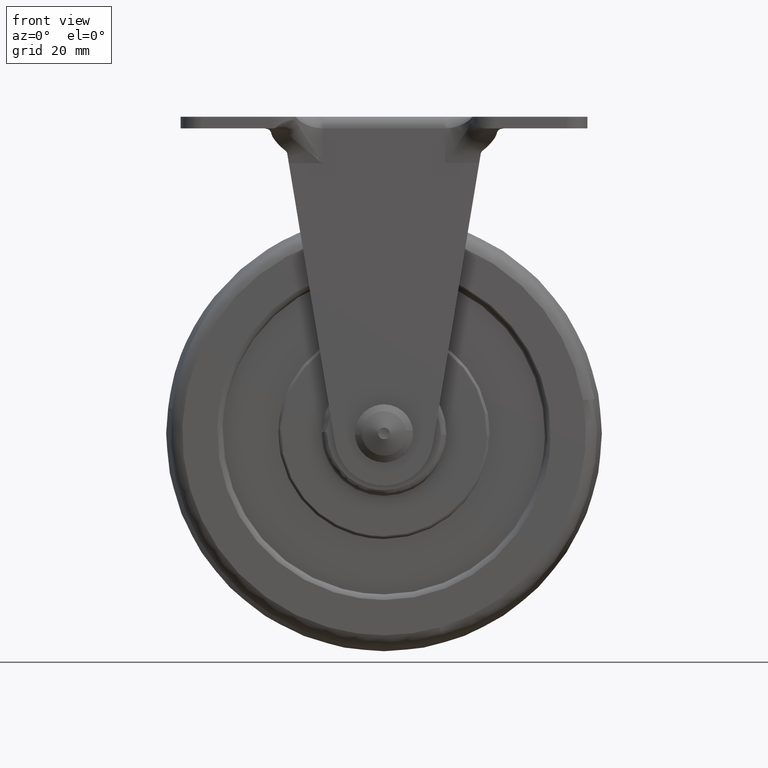
[diagram: clean part render]
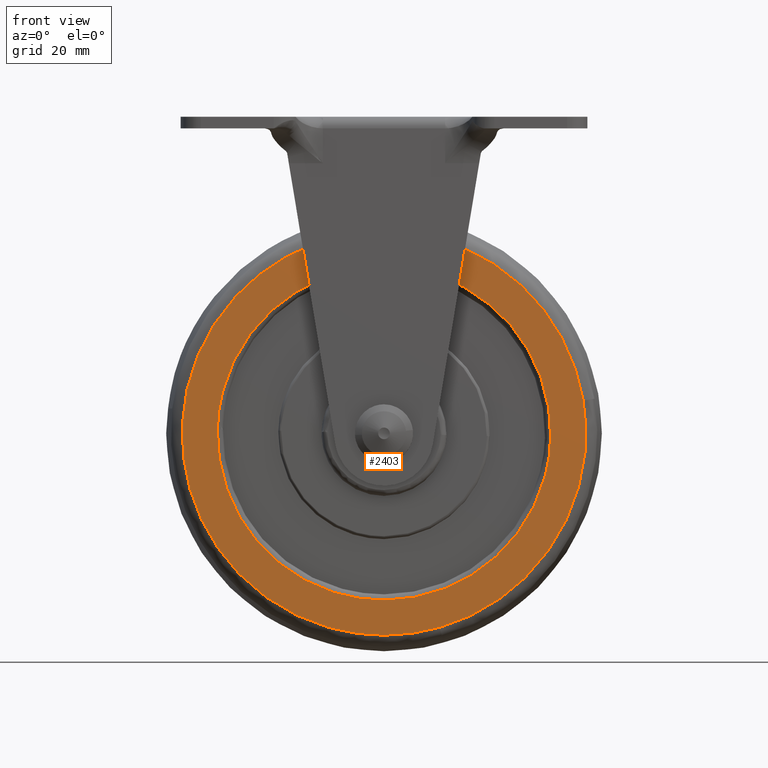
[diagram: same view with one face highlighted and labeled with its STEP entity id]
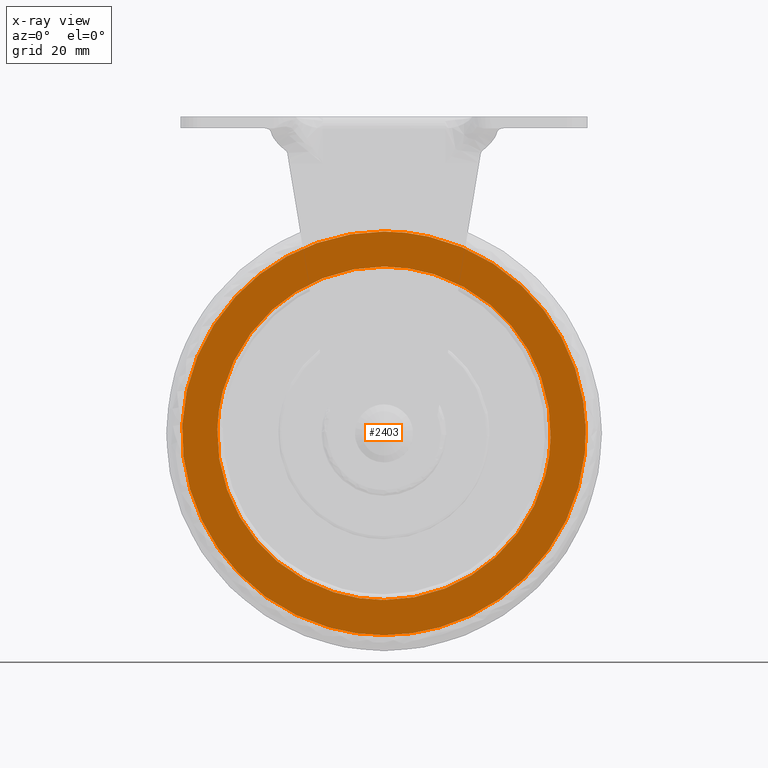
[diagram: x-ray of the same camera — body ghosted, the highlighted face saturated]
A machine part, front view. The second image highlights one B-rep face of the part: STEP entity #2403.
The next image is the same camera in x-ray: the body ghosted, the highlighted face saturated — about 0% of this face is hidden behind the body in this view.
In plain terms, the highlighted face is a freeform B-spline surface patch.
Its self-contained STEP definition (entity closure, byte-faithful):
#679=CARTESIAN_POINT('',(28.690937227376921,-10.499999999999940,-0.721233764432394));
#680=VERTEX_POINT('',#679);
#681=CARTESIAN_POINT('',(0.0,-10.500000000000000,28.700001000000000));
#682=VERTEX_POINT('',#681);
#683=CARTESIAN_POINT('',(28.690937227376914,-10.499999999999940,-0.721233764432394));
#684=CARTESIAN_POINT('',(28.700000999999997,-10.499999999999998,-0.360673834705606));
#685=CARTESIAN_POINT('',(28.700001000000000,-10.500000000000000,1.211545E-015));
#686=CARTESIAN_POINT('',(28.700000999999997,-10.500000000000000,28.700000999999997));
#687=CARTESIAN_POINT('',(0.0,-10.500000000000000,28.700001000000000));
#695=(BOUNDED_CURVE()B_SPLINE_CURVE(2,(#683,#684,#685,#686,#687),.UNSPECIFIED.,.F.,.U.)B_SPLINE_CURVE_WITH_KNOTS((3,2,3),(0.245579891767399,0.250000000000000,0.500000000000000),.UNSPECIFIED.)CURVE()GEOMETRIC_REPRESENTATION_ITEM()RATIONAL_B_SPLINE_CURVE((0.989826157676131,0.994821521088998,1.0,0.707106781186547,1.0))REPRESENTATION_ITEM(''));
#696=EDGE_CURVE('',#680,#682,#695,.T.);
#698=CARTESIAN_POINT('',(-28.690937227376910,-10.499999999999950,0.721233764432392));
#699=VERTEX_POINT('',#698);
#700=CARTESIAN_POINT('',(0.0,-10.500000000000000,28.700001000000000));
#701=CARTESIAN_POINT('',(-27.987606021176973,-10.500000000000000,28.700001000000004));
#702=CARTESIAN_POINT('',(-28.690937227376910,-10.499999999999947,0.721233764432392));
#710=(BOUNDED_CURVE()B_SPLINE_CURVE(2,(#700,#701,#702),.UNSPECIFIED.,.F.,.U.)B_SPLINE_CURVE_WITH_KNOTS((3,3),(0.500000000000000,0.745579891767398),.UNSPECIFIED.)CURVE()GEOMETRIC_REPRESENTATION_ITEM()RATIONAL_B_SPLINE_CURVE((1.0,0.712285260097550,0.989826157676130))REPRESENTATION_ITEM(''));
#711=EDGE_CURVE('',#682,#699,#710,.T.);
#799=CARTESIAN_POINT('',(0.0,-10.500000000000000,-28.700001000000000));
#800=VERTEX_POINT('',#799);
#801=CARTESIAN_POINT('',(0.0,-10.500000000000000,-28.700001000000000));
#802=CARTESIAN_POINT('',(27.987606021177072,-10.500000000000000,-28.700000999999990));
#803=CARTESIAN_POINT('',(28.690937227376921,-10.499999999999941,-0.721233764432394));
#811=(BOUNDED_CURVE()B_SPLINE_CURVE(2,(#801,#802,#803),.UNSPECIFIED.,.F.,.U.)B_SPLINE_CURVE_WITH_KNOTS((3,3),(0.0,0.245579891767399),.UNSPECIFIED.)CURVE()GEOMETRIC_REPRESENTATION_ITEM()RATIONAL_B_SPLINE_CURVE((1.0,0.712285260097549,0.989826157676131))REPRESENTATION_ITEM(''));
#812=EDGE_CURVE('',#800,#680,#811,.T.);
#846=CARTESIAN_POINT('',(-28.690937227376914,-10.499999999999948,0.721233764432392));
#847=CARTESIAN_POINT('',(-28.700000999999997,-10.499999999999998,0.360673834705608));
#848=CARTESIAN_POINT('',(-28.700001000000000,-10.500000000000000,1.211545E-015));
#849=CARTESIAN_POINT('',(-28.700000999999997,-10.500000000000000,-28.700000999999997));
#850=CARTESIAN_POINT('',(0.0,-10.500000000000000,-28.700001000000000));
#858=(BOUNDED_CURVE()B_SPLINE_CURVE(2,(#846,#847,#848,#849,#850),.UNSPECIFIED.,.F.,.U.)B_SPLINE_CURVE_WITH_KNOTS((3,2,3),(0.745579891767399,0.750000000000000,1.0),.UNSPECIFIED.)CURVE()GEOMETRIC_REPRESENTATION_ITEM()RATIONAL_B_SPLINE_CURVE((0.989826157676131,0.994821521088998,1.0,0.707106781186547,1.0))REPRESENTATION_ITEM(''));
#859=EDGE_CURVE('',#699,#800,#858,.T.);
#2050=CARTESIAN_POINT('',(9.570434723484794,-10.499999999999940,-33.397186575043577));
#2051=VERTEX_POINT('',#2050);
#2052=CARTESIAN_POINT('',(34.278856995392559,-10.499999999999940,5.650243789180355));
#2053=VERTEX_POINT('',#2052);
#2054=CARTESIAN_POINT('',(9.570434723484796,-10.499999999999940,-33.397186575043584));
#2055=CARTESIAN_POINT('',(34.741406003723291,-10.500000000000000,-26.184089824075990));
#2056=CARTESIAN_POINT('',(34.741406003723299,-10.500000000000000,1.211545E-015));
#2057=CARTESIAN_POINT('',(34.741406003723306,-10.499999999999996,2.844054846396036));
#2058=CARTESIAN_POINT('',(34.278856995392559,-10.499999999999940,5.650243789180355));
#2066=(BOUNDED_CURVE()B_SPLINE_CURVE(2,(#2054,#2055,#2056,#2057,#2058),.UNSPECIFIED.,.F.,.U.)B_SPLINE_CURVE_WITH_KNOTS((3,2,3),(0.046928272030947,0.250000000000000,0.277993891203201),.UNSPECIFIED.)CURVE()GEOMETRIC_REPRESENTATION_ITEM()RATIONAL_B_SPLINE_CURVE((0.910681108908233,0.762086671780537,1.0,0.967203116393524,0.941751131918918))REPRESENTATION_ITEM(''));
#2067=EDGE_CURVE('',#2051,#2053,#2066,.T.);
#2152=CARTESIAN_POINT('',(0.0,-10.500000000000000,-34.741406003723299));
#2153=VERTEX_POINT('',#2152);
#2154=CARTESIAN_POINT('',(0.0,-10.500000000000000,-34.741406003723299));
#2155=CARTESIAN_POINT('',(4.879618814094374,-10.499999999999998,-34.741406003723291));
#2156=CARTESIAN_POINT('',(9.570434723484796,-10.499999999999940,-33.397186575043584));
#2164=(BOUNDED_CURVE()B_SPLINE_CURVE(2,(#2154,#2155,#2156),.UNSPECIFIED.,.F.,.U.)B_SPLINE_CURVE_WITH_KNOTS((3,3),(0.0,0.046928272030947),.UNSPECIFIED.)CURVE()GEOMETRIC_REPRESENTATION_ITEM()RATIONAL_B_SPLINE_CURVE((1.0,0.945020109406011,0.910681108908233))REPRESENTATION_ITEM(''));
#2165=EDGE_CURVE('',#2153,#2051,#2164,.T.);
#2167=CARTESIAN_POINT('',(0.0,-10.500000000000000,34.741406003723299));
#2168=VERTEX_POINT('',#2167);
#2169=CARTESIAN_POINT('',(0.0,-10.500000000000000,34.741406003723299));
#2170=CARTESIAN_POINT('',(-34.741406003723299,-10.500000000000002,34.741406003723299));
#2171=CARTESIAN_POINT('',(-34.741406003723299,-10.500000000000000,1.211545E-015));
#2172=CARTESIAN_POINT('',(-34.741406003723299,-10.500000000000002,-34.741406003723299));
#2173=CARTESIAN_POINT('',(0.0,-10.500000000000000,-34.741406003723299));
#2181=(BOUNDED_CURVE()B_SPLINE_CURVE(2,(#2169,#2170,#2171,#2172,#2173),.UNSPECIFIED.,.F.,.U.)B_SPLINE_CURVE_WITH_KNOTS((3,2,3),(0.500000000000000,0.750000000000000,1.0),.UNSPECIFIED.)CURVE()GEOMETRIC_REPRESENTATION_ITEM()RATIONAL_B_SPLINE_CURVE((1.0,0.707106781186548,1.0,0.707106781186548,1.0))REPRESENTATION_ITEM(''));
#2182=EDGE_CURVE('',#2168,#2153,#2181,.T.);
#2184=CARTESIAN_POINT('',(34.278856995392559,-10.499999999999940,5.650243789180355));
#2185=CARTESIAN_POINT('',(29.483709975489660,-10.500000000000000,34.741406003723299));
#2186=CARTESIAN_POINT('',(0.0,-10.500000000000000,34.741406003723299));
#2194=(BOUNDED_CURVE()B_SPLINE_CURVE(2,(#2184,#2185,#2186),.UNSPECIFIED.,.F.,.U.)B_SPLINE_CURVE_WITH_KNOTS((3,3),(0.277993891203201,0.500000000000000),.UNSPECIFIED.)CURVE()GEOMETRIC_REPRESENTATION_ITEM()RATIONAL_B_SPLINE_CURVE((0.941751131918918,0.739903664793024,1.0))REPRESENTATION_ITEM(''));
#2195=EDGE_CURVE('',#2053,#2168,#2194,.T.);
#2386=CARTESIAN_POINT('',(-38.211795458157901,-10.500000000000000,38.212072328824078));
#2387=CARTESIAN_POINT('',(-38.211795458157901,-10.500000000000000,-38.212074192498342));
#2388=CARTESIAN_POINT('',(38.206254365189253,-10.500000000000000,38.212072328824078));
#2389=CARTESIAN_POINT('',(38.206254365189253,-10.500000000000000,-38.212074192498342));
#2390=B_SPLINE_SURFACE_WITH_KNOTS('',1,1,((#2386,#2388),(#2387,#2389)),.UNSPECIFIED.,.F.,.F.,.U.,(2,2),(2,2),(0.0,76.424146521322413),(0.0,76.418049823347147),.UNSPECIFIED.);
#2391=ORIENTED_EDGE('',*,*,#2165,.T.);
#2392=ORIENTED_EDGE('',*,*,#2067,.T.);
#2393=ORIENTED_EDGE('',*,*,#2195,.T.);
#2394=ORIENTED_EDGE('',*,*,#2182,.T.);
#2395=EDGE_LOOP('',(#2391,#2392,#2393,#2394));
#2396=FACE_OUTER_BOUND('',#2395,.T.);
#2397=ORIENTED_EDGE('',*,*,#711,.F.);
#2398=ORIENTED_EDGE('',*,*,#696,.F.);
#2399=ORIENTED_EDGE('',*,*,#812,.F.);
#2400=ORIENTED_EDGE('',*,*,#859,.F.);
#2401=EDGE_LOOP('',(#2397,#2398,#2399,#2400));
#2402=FACE_BOUND('',#2401,.T.);
#2403=ADVANCED_FACE('',(#2396,#2402),#2390,.T.);